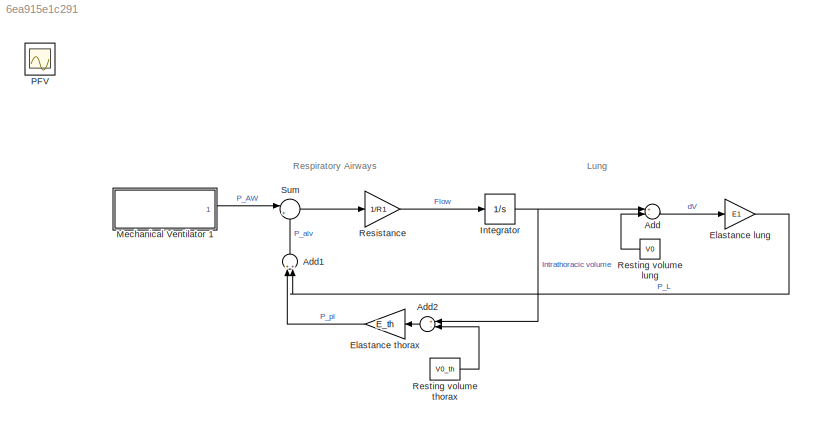
MODEL slx_6ea915e1c291
KIND model
CONFIG AbsTol = auto
CONFIG EnableMultiTasking = off
CONFIG FixedStep = auto
CONFIG MaxStep = auto
CONFIG MinStep = auto
CONFIG RelTol = 1e-3
CONFIG SampleTimeConstraint = Unconstrained
CONFIG Solver = VariableStepAuto
CONFIG SolverName = VariableStepAuto
CONFIG StartTime = 0.0
CONFIG StopTime = T
BLOCK [Sum] Add
  InputSameDT = off
  Inputs = +-
  OutDataTypeStr = Inherit: Inherit via internal rule
  Ports = [2, 1]
  SaturateOnIntegerOverflow = off
BLOCK [Sum] Add1
  InputSameDT = off
  OutDataTypeStr = Inherit: Inherit via internal rule
  Ports = [2, 1]
  SaturateOnIntegerOverflow = off
BLOCK [Sum] Add2
  InputSameDT = off
  Inputs = +-
  OutDataTypeStr = Inherit: Inherit via internal rule
  Ports = [2, 1]
  SaturateOnIntegerOverflow = off
BLOCK [Gain] Elastance lung
  Gain = E1
  OutDataTypeStr = Inherit: Inherit via internal rule
  ParamDataTypeStr = Inherit: Inherit via internal rule
  SaturateOnIntegerOverflow = off
BLOCK [Gain] Elastance thorax
  Gain = E_th
  OutDataTypeStr = Inherit: Inherit via internal rule
  ParamDataTypeStr = Inherit: Inherit via internal rule
  SaturateOnIntegerOverflow = off
BLOCK [Integrator] Integrator
  Ports = [1, 1]
  ZeroCross = off
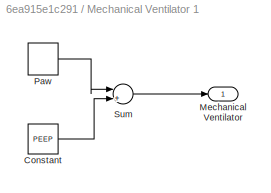
BLOCK [SubSystem] Mechanical Ventilator 1
  Ports = [0, 1]
  RequestExecContextInheritance = off
BLOCK [Constant] Mechanical Ventilator 1/Constant
  SampleTime = 0.1
  Value = PEEP
BLOCK [Outport] Mechanical Ventilator 1/Mechanical Ventilator
  IconDisplay = Port number
  VectorParamsAs1DForOutWhenUnconnected = off
BLOCK [DiscretePulseGenerator] Mechanical Ventilator 1/Paw
  Amplitude = Pcontrol
  Period = breath
  PhaseDelay = 2
  Ports = [0, 1]
  PulseType = Time based
  PulseWidth = insptime
  SampleTime = 0.1
BLOCK [Sum] Mechanical Ventilator 1/Sum
  InputSameDT = off
  Inputs = |++
  OutDataTypeStr = Inherit: Inherit via internal rule
  Ports = [2, 1]
  SaturateOnIntegerOverflow = off
BLOCK [Scope] PFV
  Floating = off
  IOType = viewer
  NumInputPorts = 1
  Ports = []
  ScopeSpecificationString = Simulink.scopes.TimeScopeBlockCfg('CurrentConfiguration', extmgr.ConfigurationSet(extmgr.Configuration('Core','General UI',true,'FigureColor',[1 1 1]),extmgr.Configuration('Core','Source UI',true),extmgr.Configuration('Sources','WiredSimulink',true,'DataLoggingVariableName','ScopeData1'),extmgr.Configuration('Visuals','Time Domain',true,'SerializedDisplays',{struct('MinYLimReal','-56.725','MaxYLim...<+1949ch>
BLOCK [Gain] Resistance
  Gain = 1/R1
  OutDataTypeStr = Inherit: Inherit via internal rule
  ParamDataTypeStr = Inherit: Inherit via internal rule
  SaturateOnIntegerOverflow = off
BLOCK [Constant] Resting volume lung
  Value = V0
BLOCK [Constant] Resting volume thorax
  Value = V0_th
BLOCK [Sum] Sum
  IconShape = round
  InputSameDT = off
  Inputs = |+-
  OutDataTypeStr = Inherit: Inherit via internal rule
  Ports = [2, 1]
  SaturateOnIntegerOverflow = off
ANNOTATION (root): Thorax
ANNOTATION (root): Lung
ANNOTATION (root): Respiratory Airways
LINE Add1:1 -> Sum:2
LINE Add2:1 -> Elastance thorax:1
LINE Add:1 -> Elastance lung:1
LINE Elastance lung:1 -> Add1:2
LINE Elastance thorax:1 -> Add1:1
NET Integrator:1 -> Add2:1, Add:1
LINE Mechanical Ventilator 1/Constant:1 -> Mechanical Ventilator 1/Sum:2
LINE Mechanical Ventilator 1/Paw:1 -> Mechanical Ventilator 1/Sum:1
LINE Mechanical Ventilator 1/Sum:1 -> Mechanical Ventilator 1/Mechanical Ventilator:1
LINE Mechanical Ventilator 1:1 -> Sum:1
LINE Resistance:1 -> Integrator:1
LINE Resting volume lung:1 -> Add:2
LINE Resting volume thorax:1 -> Add2:2
LINE Sum:1 -> Resistance:1
note: NET lines group one-source signal fan-out (src -> all destinations, sorted); 1:1 wires keep LINE
